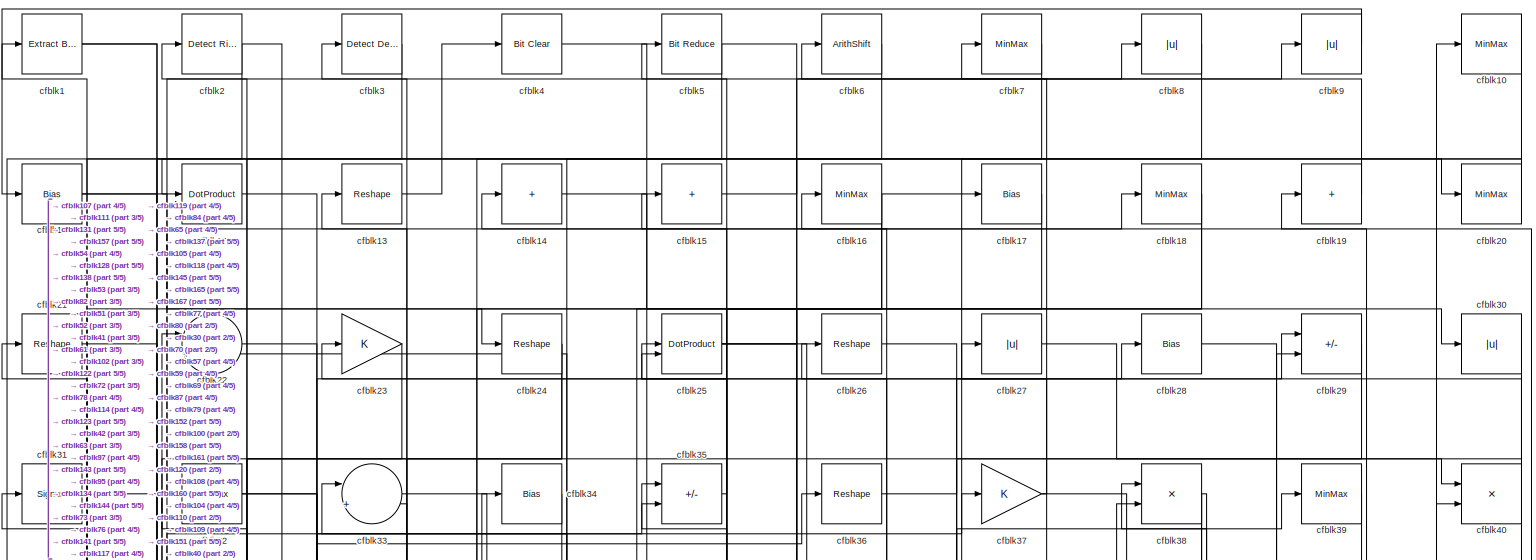
[diagram: root canvas - part 1/5, full width, top band]
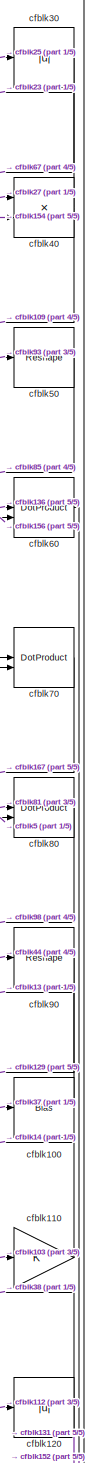
[diagram: root canvas - part 2/5, middle right region]
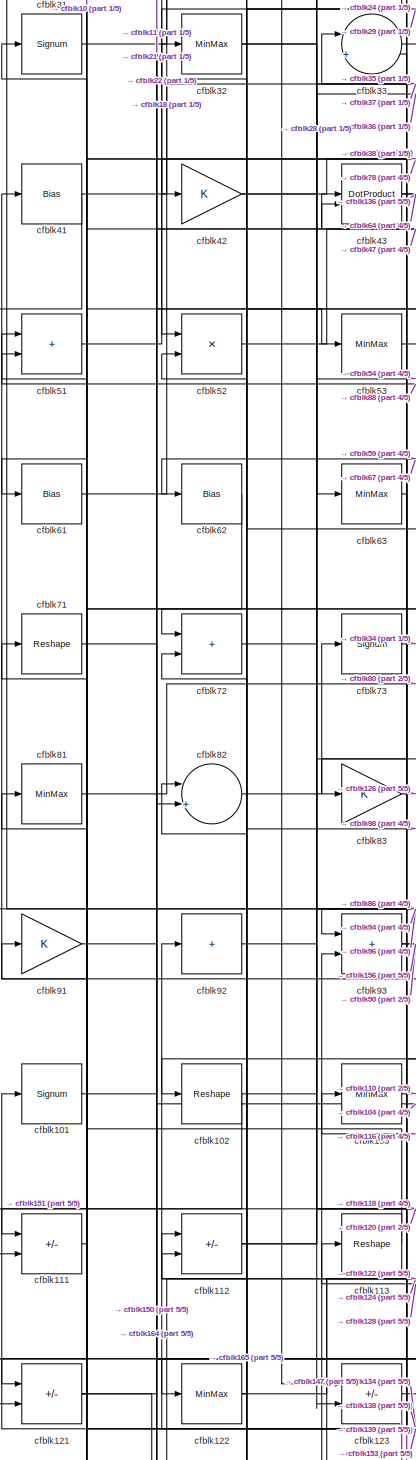
[diagram: root canvas - part 3/5, middle left region]
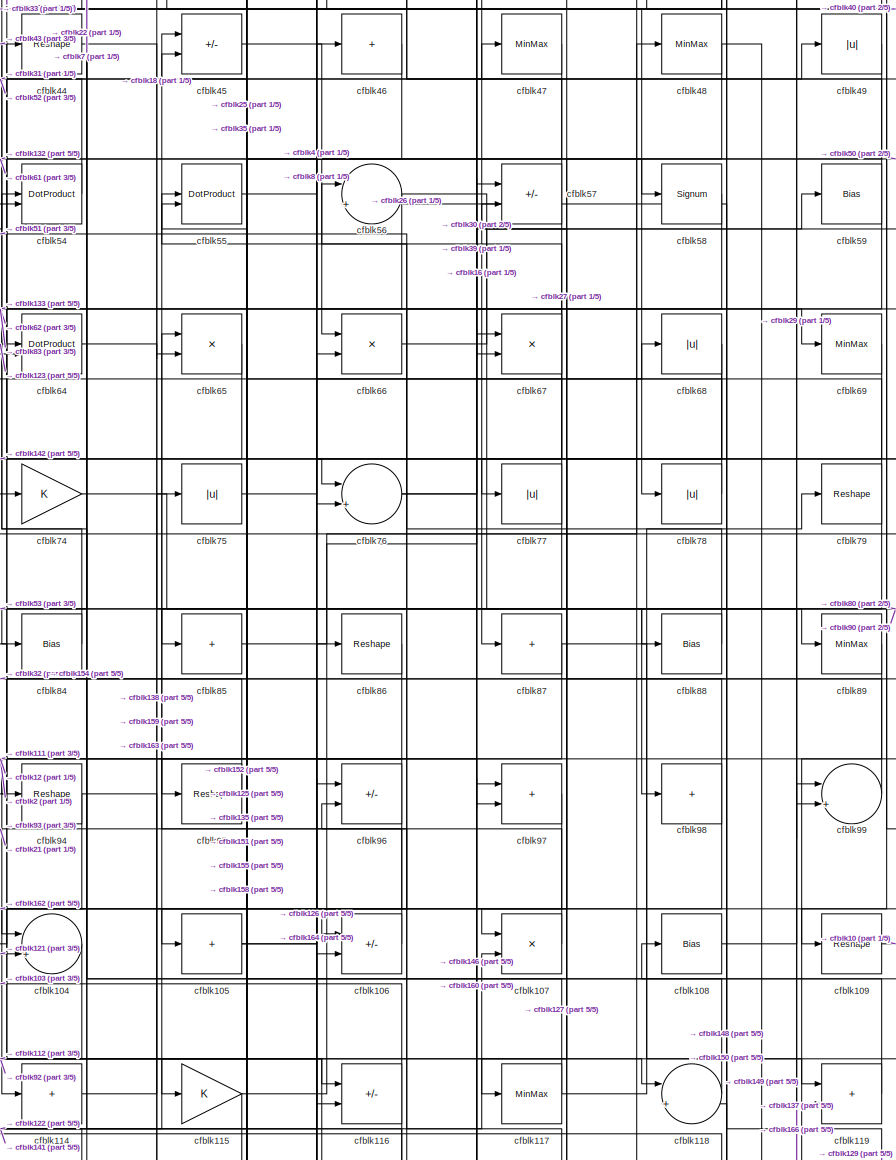
[diagram: root canvas - part 4/5, central region]
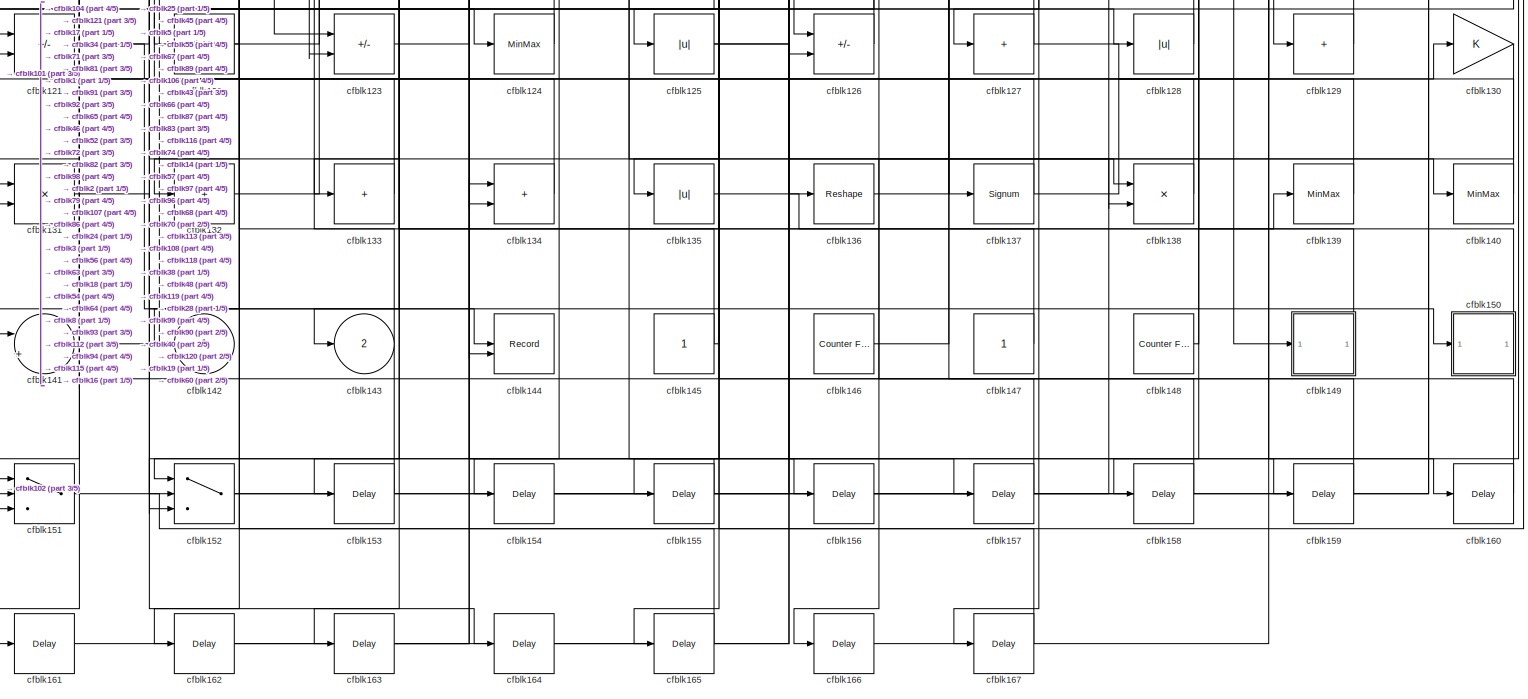
[diagram: root canvas - part 5/5, full width, bottom band]
MODEL slx_2e3765b3fd64
KIND model
CONFIG AbsTol = auto
CONFIG EnableMultiTasking = off
CONFIG FixedStep = auto
CONFIG MaxStep = auto
CONFIG MinStep = auto
CONFIG RelTol = 1e-3
CONFIG SampleTimeConstraint = Unconstrained
CONFIG SolverName = VariableStepAuto
CONFIG StartTime = 0.0
CONFIG StopTime = 10.0
BLOCK [Reference] cfblk1  REF=simulink/Logic and Bit
Operations/Extract Bits
  LibrarySourceBlock = hdlsllib/Logic and Bit\nOperations/Extract Bits
  SourceBlock = simulink/Logic and Bit\nOperations/Extract Bits
  SourceType = Extract Bits
BLOCK [MinMax] cfblk10
BLOCK [Bias] cfblk100
  Bias = 0.0
  SaturateOnIntegerOverflow = off
BLOCK [Signum] cfblk101
BLOCK [Reshape] cfblk102
BLOCK [MinMax] cfblk103
BLOCK [Sum] cfblk104
  Inputs = |++
BLOCK [Sum] cfblk105
  IconShape = rectangular
  Inputs = +
BLOCK [Sum] cfblk106
  IconShape = rectangular
  Inputs = +-
BLOCK [Product] cfblk107
  Inputs = */
  RndMeth = Zero
  SaturateOnIntegerOverflow = on
BLOCK [Bias] cfblk108
  Bias = 0.0
  SaturateOnIntegerOverflow = off
BLOCK [Reshape] cfblk109
BLOCK [Bias] cfblk11
  Bias = 0.0
  SaturateOnIntegerOverflow = off
BLOCK [Gain] cfblk110
BLOCK [Sum] cfblk111
  IconShape = rectangular
  Inputs = +-
BLOCK [Sum] cfblk112
  IconShape = rectangular
  Inputs = +-
BLOCK [Reshape] cfblk113
BLOCK [Sum] cfblk114
  IconShape = rectangular
  Inputs = +
BLOCK [Gain] cfblk115
BLOCK [Sum] cfblk116
  IconShape = rectangular
  Inputs = +-
BLOCK [MinMax] cfblk117
BLOCK [Sum] cfblk118
  Inputs = |++
BLOCK [Sum] cfblk119
  IconShape = rectangular
BLOCK [DotProduct] cfblk12
  OutDataTypeStr = Inherit: Inherit via internal rule
BLOCK [Abs] cfblk120
  SaturateOnIntegerOverflow = off
BLOCK [Sum] cfblk121
  IconShape = rectangular
  Inputs = +-
BLOCK [MinMax] cfblk122
BLOCK [Sum] cfblk123
  IconShape = rectangular
  Inputs = +-
BLOCK [MinMax] cfblk124
BLOCK [Abs] cfblk125
  SaturateOnIntegerOverflow = off
BLOCK [Sum] cfblk126
  IconShape = rectangular
  Inputs = +-
BLOCK [Sum] cfblk127
  IconShape = rectangular
  Inputs = +
BLOCK [Abs] cfblk128
  SaturateOnIntegerOverflow = off
BLOCK [Sum] cfblk129
  IconShape = rectangular
  Inputs = +
BLOCK [Reshape] cfblk13
BLOCK [Gain] cfblk130
BLOCK [Product] cfblk131
  Inputs = */
  RndMeth = Zero
  SaturateOnIntegerOverflow = on
BLOCK [Sum] cfblk132
  IconShape = rectangular
  Inputs = +
BLOCK [Sum] cfblk133
  IconShape = rectangular
  Inputs = +
BLOCK [Sum] cfblk134
  IconShape = rectangular
BLOCK [Abs] cfblk135
  SaturateOnIntegerOverflow = off
BLOCK [Reshape] cfblk136
BLOCK [Signum] cfblk137
BLOCK [Product] cfblk138
  Inputs = */
  RndMeth = Zero
  SaturateOnIntegerOverflow = on
BLOCK [MinMax] cfblk139
BLOCK [Sum] cfblk14
  IconShape = rectangular
  Inputs = +
BLOCK [MinMax] cfblk140
BLOCK [Sum] cfblk141
  Inputs = |++
BLOCK [Outport] cfblk142
  VectorParamsAs1DForOutWhenUnconnected = off
BLOCK [Outport] cfblk143
  Port = 2
  VectorParamsAs1DForOutWhenUnconnected = off
BLOCK [Record] cfblk144
  CompatibilityTag = XY
  FileSettingsInternal = {"entries":[{"content":{"excelSettings":{"content":{},"type":"Streamout.ExcelSettings"}},"type":"Streamout.FileSettingStorage","uuid":""}],"packageUris":["http:\/\/schema.mathworks.com\/mf0\/streamout_blocks\/R2020a"],"version":"1.0"}
  Layout = [1 1]
  SignalsInternal = {"entries":[{"content":{"signals":[{"content":{"blockPath":[],"dimensions":[1],"domain":"","lineColor":"#a2142f","plots":[1],"port":1,"signalID":5674,"signalName":"XY Graph:1"},"type":"RecordBlkView.Signal","uuid":""},{"content":{"blockPath":[],"dimensions":[1],"domain":"","lineColor":"#139fff","plots":[1],"port":2,"signalID":5677,"signalName":"XY Graph:2"},"type":"RecordBlkView.Signal","uuid":""}...<+146ch>
  VisualizationBindings = {"xyplotplugin":{"info":[{"series":[{"bindingParametersList":[{"parameter":"X-Axis","signalID":5674,"signalName":"XY Graph:1"},{"parameter":"Y-Axis","signalID":5677,"signalName":"XY Graph:2"}],"seriesID":16852}],"subplotID":1}]}}
  st = -1
BLOCK [Constant] cfblk145
  SampleTime = -1
BLOCK [Reference] cfblk146  REF=hdlsllib/Sources/Counter
Free-Running
  SourceBlock = hdlsllib/Sources/Counter\nFree-Running
  SourceType = Counter Free-Running
BLOCK [Constant] cfblk147
  SampleTime = -1
BLOCK [Reference] cfblk148  REF=hdlsllib/Sources/Counter
Free-Running
  SourceBlock = hdlsllib/Sources/Counter\nFree-Running
  SourceType = Counter Free-Running
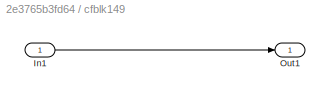
BLOCK [SubSystem] cfblk149
  LibrarySourceBlock = hdlsllib/Ports &\nSubsystems/Subsystem
BLOCK [Inport] cfblk149/In1
BLOCK [Outport] cfblk149/Out1
BLOCK [Sum] cfblk15
  IconShape = rectangular
  Inputs = +
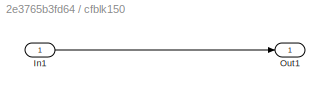
BLOCK [SubSystem] cfblk150
  LibrarySourceBlock = hdlsllib/Ports &\nSubsystems/Subsystem
BLOCK [Inport] cfblk150/In1
BLOCK [Outport] cfblk150/Out1
BLOCK [Switch] cfblk151
  InputSameDT = off
  SaturateOnIntegerOverflow = off
BLOCK [Switch] cfblk152
  InputSameDT = off
  SaturateOnIntegerOverflow = off
BLOCK [Delay] cfblk153
  InputPortMap = u0
  SampleTime = 1
BLOCK [Delay] cfblk154
  InputPortMap = u0
  SampleTime = 1
BLOCK [Delay] cfblk155
  InputPortMap = u0
  SampleTime = 1
BLOCK [Delay] cfblk156
  InputPortMap = u0
  SampleTime = 1
BLOCK [Delay] cfblk157
  InputPortMap = u0
  SampleTime = 1
BLOCK [Delay] cfblk158
  InputPortMap = u0
  SampleTime = 1
BLOCK [Delay] cfblk159
  InputPortMap = u0
  SampleTime = 1
BLOCK [MinMax] cfblk16
BLOCK [Delay] cfblk160
  InputPortMap = u0
  SampleTime = 1
BLOCK [Delay] cfblk161
  InputPortMap = u0
  SampleTime = 1
BLOCK [Delay] cfblk162
  InputPortMap = u0
  SampleTime = 1
BLOCK [Delay] cfblk163
  InputPortMap = u0
  SampleTime = 1
BLOCK [Delay] cfblk164
  InputPortMap = u0
  SampleTime = 1
BLOCK [Delay] cfblk165
  InputPortMap = u0
  SampleTime = 1
BLOCK [Delay] cfblk166
  InputPortMap = u0
  SampleTime = 1
BLOCK [Delay] cfblk167
  InputPortMap = u0
  SampleTime = 1
BLOCK [Bias] cfblk17
  Bias = 0.0
  SaturateOnIntegerOverflow = off
BLOCK [MinMax] cfblk18
BLOCK [Sum] cfblk19
  IconShape = rectangular
  Inputs = +
BLOCK [Reference] cfblk2  REF=hdlsllib/Logic and Bit
Operations/Detect Rise
Positive
  SourceBlock = hdlsllib/Logic and Bit\nOperations/Detect Rise\nPositive
  SourceType = Detect Rise Positive
BLOCK [MinMax] cfblk20
BLOCK [Reshape] cfblk21
BLOCK [Sum] cfblk22
  Inputs = |++
BLOCK [Gain] cfblk23
BLOCK [Reshape] cfblk24
BLOCK [DotProduct] cfblk25
  OutDataTypeStr = Inherit: Inherit via internal rule
BLOCK [Reshape] cfblk26
BLOCK [Abs] cfblk27
  SaturateOnIntegerOverflow = off
BLOCK [Bias] cfblk28
  Bias = 0.0
  SaturateOnIntegerOverflow = off
BLOCK [Sum] cfblk29
  IconShape = rectangular
  Inputs = +-
BLOCK [Reference] cfblk3  REF=simulink/Logic and Bit
Operations/Detect
Decrease
  LibrarySourceBlock = hdlsllib/Logic and Bit\nOperations/Detect\nDecrease
  SourceBlock = simulink/Logic and Bit\nOperations/Detect\nDecrease
  SourceType = Detect Decrease
BLOCK [Abs] cfblk30
  SaturateOnIntegerOverflow = off
BLOCK [Signum] cfblk31
BLOCK [MinMax] cfblk32
BLOCK [Sum] cfblk33
  Inputs = |++
BLOCK [Bias] cfblk34
  Bias = 0.0
  SaturateOnIntegerOverflow = off
BLOCK [Sum] cfblk35
  IconShape = rectangular
  Inputs = +-
BLOCK [Reshape] cfblk36
BLOCK [Gain] cfblk37
BLOCK [Product] cfblk38
  Inputs = */
  RndMeth = Zero
  SaturateOnIntegerOverflow = on
BLOCK [MinMax] cfblk39
BLOCK [Reference] cfblk4  REF=simulink/Logic and Bit
Operations/Bit Clear
  LibrarySourceBlock = hdlsllib/Logic and Bit\nOperations/Bit Clear
  SourceBlock = simulink/Logic and Bit\nOperations/Bit Clear
  SourceType = Bit Clear
BLOCK [Product] cfblk40
  Inputs = */
  RndMeth = Zero
  SaturateOnIntegerOverflow = on
BLOCK [Bias] cfblk41
  Bias = 0.0
  SaturateOnIntegerOverflow = off
BLOCK [Gain] cfblk42
BLOCK [DotProduct] cfblk43
  OutDataTypeStr = Inherit: Inherit via internal rule
BLOCK [Reshape] cfblk44
BLOCK [Sum] cfblk45
  IconShape = rectangular
  Inputs = +-
BLOCK [Sum] cfblk46
  IconShape = rectangular
  Inputs = +
BLOCK [MinMax] cfblk47
BLOCK [MinMax] cfblk48
BLOCK [Abs] cfblk49
  SaturateOnIntegerOverflow = off
BLOCK [Reference] cfblk5  REF=hdlsllib/Logic and Bit
Operations/Bit Reduce
  SourceBlock = hdlsllib/Logic and Bit\nOperations/Bit Reduce
  SourceType = Bit Reduce
BLOCK [Reshape] cfblk50
BLOCK [Sum] cfblk51
  IconShape = rectangular
BLOCK [Product] cfblk52
  Inputs = */
  RndMeth = Zero
  SaturateOnIntegerOverflow = on
BLOCK [MinMax] cfblk53
BLOCK [DotProduct] cfblk54
  OutDataTypeStr = Inherit: Inherit via internal rule
BLOCK [DotProduct] cfblk55
  OutDataTypeStr = Inherit: Inherit via internal rule
BLOCK [Sum] cfblk56
  Inputs = |++
BLOCK [Sum] cfblk57
  IconShape = rectangular
  Inputs = +-
BLOCK [Signum] cfblk58
BLOCK [Bias] cfblk59
  Bias = 0.0
  SaturateOnIntegerOverflow = off
BLOCK [ArithShift] cfblk6
  BitShiftNumber = 8
  InputPortMap = u0
BLOCK [DotProduct] cfblk60
  OutDataTypeStr = Inherit: Inherit via internal rule
BLOCK [Bias] cfblk61
  Bias = 0.0
  SaturateOnIntegerOverflow = off
BLOCK [Bias] cfblk62
  Bias = 0.0
  SaturateOnIntegerOverflow = off
BLOCK [MinMax] cfblk63
BLOCK [DotProduct] cfblk64
  OutDataTypeStr = Inherit: Inherit via internal rule
BLOCK [Product] cfblk65
  Inputs = */
  RndMeth = Zero
  SaturateOnIntegerOverflow = on
BLOCK [Product] cfblk66
  Inputs = */
  RndMeth = Zero
  SaturateOnIntegerOverflow = on
BLOCK [Product] cfblk67
  Inputs = */
  RndMeth = Zero
  SaturateOnIntegerOverflow = on
BLOCK [Abs] cfblk68
  SaturateOnIntegerOverflow = off
BLOCK [MinMax] cfblk69
BLOCK [MinMax] cfblk7
BLOCK [DotProduct] cfblk70
  OutDataTypeStr = Inherit: Inherit via internal rule
BLOCK [Reshape] cfblk71
BLOCK [Sum] cfblk72
  IconShape = rectangular
BLOCK [Signum] cfblk73
BLOCK [Gain] cfblk74
BLOCK [Abs] cfblk75
  SaturateOnIntegerOverflow = off
BLOCK [Sum] cfblk76
  Inputs = |++
BLOCK [Abs] cfblk77
  SaturateOnIntegerOverflow = off
BLOCK [Abs] cfblk78
  SaturateOnIntegerOverflow = off
BLOCK [Reshape] cfblk79
BLOCK [Abs] cfblk8
  SaturateOnIntegerOverflow = off
BLOCK [DotProduct] cfblk80
  OutDataTypeStr = Inherit: Inherit via internal rule
BLOCK [MinMax] cfblk81
BLOCK [Sum] cfblk82
  Inputs = |++
BLOCK [Gain] cfblk83
BLOCK [Bias] cfblk84
  Bias = 0.0
  SaturateOnIntegerOverflow = off
BLOCK [Sum] cfblk85
  IconShape = rectangular
  Inputs = +
BLOCK [Reshape] cfblk86
BLOCK [Sum] cfblk87
  IconShape = rectangular
  Inputs = +
BLOCK [Bias] cfblk88
  Bias = 0.0
  SaturateOnIntegerOverflow = off
BLOCK [MinMax] cfblk89
BLOCK [Abs] cfblk9
  SaturateOnIntegerOverflow = off
BLOCK [Reshape] cfblk90
BLOCK [Gain] cfblk91
BLOCK [Sum] cfblk92
  IconShape = rectangular
  Inputs = +
BLOCK [Sum] cfblk93
  IconShape = rectangular
BLOCK [Reshape] cfblk94
BLOCK [Reshape] cfblk95
BLOCK [Sum] cfblk96
  IconShape = rectangular
  Inputs = +-
BLOCK [Sum] cfblk97
  IconShape = rectangular
BLOCK [Sum] cfblk98
  IconShape = rectangular
  Inputs = +
BLOCK [Sum] cfblk99
  Inputs = |++
LINE cfblk100:1 -> cfblk13:1
LINE cfblk101:1 -> cfblk43:2
NET cfblk102:1 -> cfblk151:2, cfblk28:1
LINE cfblk103:1 -> cfblk110:1
LINE cfblk104:1 -> cfblk141:1
NET cfblk105:1 -> cfblk68:1, cfblk8:1
LINE cfblk106:1 -> cfblk45:1
LINE cfblk107:1 -> cfblk21:1
LINE cfblk108:1 -> cfblk29:2
LINE cfblk109:1 -> cfblk10:1
LINE cfblk10:1 -> cfblk111:1
LINE cfblk110:1 -> cfblk14:1
LINE cfblk111:1 -> cfblk41:1
NET cfblk112:1 -> cfblk120:1, cfblk54:1
LINE cfblk113:1 -> cfblk91:1
LINE cfblk114:1 -> cfblk75:1
NET cfblk115:1 -> cfblk152:3, cfblk48:1
NET cfblk116:1 -> cfblk103:1, cfblk151:3
NET cfblk117:1 -> cfblk22:2, cfblk79:1
LINE cfblk118:1 -> cfblk35:2
LINE cfblk119:1 -> cfblk33:1
NET cfblk11:1 -> cfblk24:1, cfblk82:2
NET cfblk120:1 -> cfblk131:2, cfblk38:1
NET cfblk121:1 -> cfblk104:2, cfblk150:1, cfblk51:2
NET cfblk122:1 -> cfblk107:2, cfblk52:2
LINE cfblk123:1 -> cfblk64:1
LINE cfblk124:1 -> cfblk112:1
NET cfblk125:1 -> cfblk140:1, cfblk157:1
LINE cfblk126:1 -> cfblk74:1
NET cfblk127:1 -> cfblk130:1, cfblk96:2
LINE cfblk128:1 -> cfblk113:1
LINE cfblk129:1 -> cfblk56:2
LINE cfblk12:1 -> cfblk97:2
LINE cfblk130:1 -> cfblk166:1
LINE cfblk131:1 -> cfblk144:1
LINE cfblk132:1 -> cfblk86:1
LINE cfblk133:1 -> cfblk92:1
LINE cfblk134:1 -> cfblk101:1
LINE cfblk135:1 -> cfblk139:1
LINE cfblk136:1 -> cfblk60:1
NET cfblk137:1 -> cfblk119:2, cfblk55:2
LINE cfblk138:1 -> cfblk71:1
LINE cfblk139:1 -> cfblk81:1
LINE cfblk13:1 -> cfblk4:1
LINE cfblk140:1 -> cfblk82:1
LINE cfblk141:1 -> cfblk65:1
NET cfblk145:1 -> cfblk3:1, cfblk5:1
LINE cfblk146:1 -> cfblk97:1
LINE cfblk147:1 -> cfblk93:2
LINE cfblk148:1 -> cfblk108:1
LINE cfblk149/In1:1 -> cfblk149/Out1:1
LINE cfblk149:1 -> cfblk43:1
LINE cfblk14:1 -> cfblk137:1
LINE cfblk150/In1:1 -> cfblk150/Out1:1
LINE cfblk150:1 -> cfblk118:2
LINE cfblk151:1 -> cfblk19:1
NET cfblk152:1 -> cfblk38:2, cfblk96:1
LINE cfblk153:1 -> cfblk112:2
LINE cfblk154:1 -> cfblk40:2
LINE cfblk155:1 -> cfblk152:2
LINE cfblk156:1 -> cfblk60:2
LINE cfblk157:1 -> cfblk1:1
LINE cfblk158:1 -> cfblk45:2
LINE cfblk159:1 -> cfblk56:1
LINE cfblk15:1 -> cfblk20:1
LINE cfblk160:1 -> cfblk57:1
LINE cfblk161:1 -> cfblk134:1
LINE cfblk162:1 -> cfblk54:2
LINE cfblk163:1 -> cfblk66:2
LINE cfblk164:1 -> cfblk106:2
LINE cfblk165:1 -> cfblk72:2
LINE cfblk166:1 -> cfblk99:1
LINE cfblk167:1 -> cfblk25:2
NET cfblk16:1 -> cfblk105:1, cfblk165:1, cfblk87:1
LINE cfblk17:1 -> cfblk131:1
NET cfblk18:1 -> cfblk134:2, cfblk65:2
LINE cfblk19:1 -> cfblk6:1
NET cfblk1:1 -> cfblk128:1, cfblk138:1
LINE cfblk20:1 -> cfblk17:1
LINE cfblk21:1 -> cfblk53:1
LINE cfblk22:1 -> cfblk63:1
LINE cfblk23:1 -> cfblk52:1
NET cfblk24:1 -> cfblk143:1, cfblk72:1
NET cfblk25:1 -> cfblk30:1, cfblk70:1, cfblk70:2
LINE cfblk26:1 -> cfblk69:1
LINE cfblk27:1 -> cfblk40:1
LINE cfblk28:1 -> cfblk160:1
LINE cfblk29:1 -> cfblk102:1
NET cfblk2:1 -> cfblk114:1, cfblk123:1
LINE cfblk30:1 -> cfblk67:2
LINE cfblk31:1 -> cfblk9:1
NET cfblk32:1 -> cfblk116:1, cfblk94:1
LINE cfblk33:1 -> cfblk76:1
LINE cfblk34:1 -> cfblk141:2
LINE cfblk35:1 -> cfblk15:1
LINE cfblk36:1 -> cfblk29:1
NET cfblk37:1 -> cfblk100:1, cfblk7:1
NET cfblk38:1 -> cfblk158:1, cfblk161:1, cfblk42:1
LINE cfblk39:1 -> cfblk104:1
LINE cfblk3:1 -> cfblk12:1
NET cfblk40:1 -> cfblk109:1, cfblk23:1
NET cfblk41:1 -> cfblk121:2, cfblk35:1
NET cfblk42:1 -> cfblk36:1, cfblk78:1
NET cfblk43:1 -> cfblk136:1, cfblk64:2
LINE cfblk44:1 -> cfblk90:1
LINE cfblk45:1 -> cfblk66:1
LINE cfblk46:1 -> cfblk132:1
LINE cfblk47:1 -> cfblk61:1
NET cfblk48:1 -> cfblk117:1, cfblk149:1
LINE cfblk49:1 -> cfblk115:1
LINE cfblk4:1 -> cfblk76:2
LINE cfblk50:1 -> cfblk85:1
LINE cfblk51:1 -> cfblk22:1
LINE cfblk52:1 -> cfblk47:1
LINE cfblk53:1 -> cfblk88:1
LINE cfblk54:1 -> cfblk31:1
LINE cfblk55:1 -> cfblk58:1
NET cfblk56:1 -> cfblk133:1, cfblk99:2
NET cfblk57:1 -> cfblk106:1, cfblk26:1
LINE cfblk58:1 -> cfblk107:1
NET cfblk59:1 -> cfblk16:1, cfblk83:1
NET cfblk5:1 -> cfblk122:1, cfblk80:2
LINE cfblk60:1 -> cfblk152:1
LINE cfblk61:1 -> cfblk18:1
LINE cfblk62:1 -> cfblk121:1
LINE cfblk63:1 -> cfblk153:1
LINE cfblk64:1 -> cfblk159:1
LINE cfblk65:1 -> cfblk142:1
LINE cfblk66:1 -> cfblk59:1
NET cfblk67:1 -> cfblk151:1, cfblk155:1, cfblk55:1, cfblk62:1
NET cfblk68:1 -> cfblk116:2, cfblk127:1
LINE cfblk69:1 -> cfblk77:1
LINE cfblk6:1 -> cfblk12:2
LINE cfblk70:1 -> cfblk167:1
LINE cfblk71:1 -> cfblk164:1
LINE cfblk72:1 -> cfblk37:1
LINE cfblk73:1 -> cfblk34:1
LINE cfblk74:1 -> cfblk89:1
LINE cfblk75:1 -> cfblk46:1
NET cfblk76:1 -> cfblk39:1, cfblk49:1
NET cfblk77:1 -> cfblk25:1, cfblk95:1
LINE cfblk78:1 -> cfblk2:1
NET cfblk79:1 -> cfblk123:2, cfblk27:1
LINE cfblk7:1 -> cfblk84:1
LINE cfblk80:1 -> cfblk98:1
LINE cfblk81:1 -> cfblk80:1
LINE cfblk82:1 -> cfblk73:1
LINE cfblk83:1 -> cfblk126:1
LINE cfblk84:1 -> cfblk44:1
LINE cfblk85:1 -> cfblk67:1
LINE cfblk86:1 -> cfblk111:2
NET cfblk87:1 -> cfblk119:1, cfblk126:2
LINE cfblk88:1 -> cfblk51:1
LINE cfblk89:1 -> cfblk135:1
LINE cfblk8:1 -> cfblk144:2
LINE cfblk90:1 -> cfblk129:1
LINE cfblk91:1 -> cfblk124:1
LINE cfblk92:1 -> cfblk118:1
NET cfblk93:1 -> cfblk156:1, cfblk50:1
NET cfblk94:1 -> cfblk138:2, cfblk163:1
LINE cfblk95:1 -> cfblk33:2
NET cfblk96:1 -> cfblk125:1, cfblk93:1
LINE cfblk97:1 -> cfblk154:1
NET cfblk98:1 -> cfblk162:1, cfblk32:1
LINE cfblk99:1 -> cfblk57:2
LINE cfblk9:1 -> cfblk11:1
note: NET lines group one-source signal fan-out (src -> all destinations, sorted); 1:1 wires keep LINE
